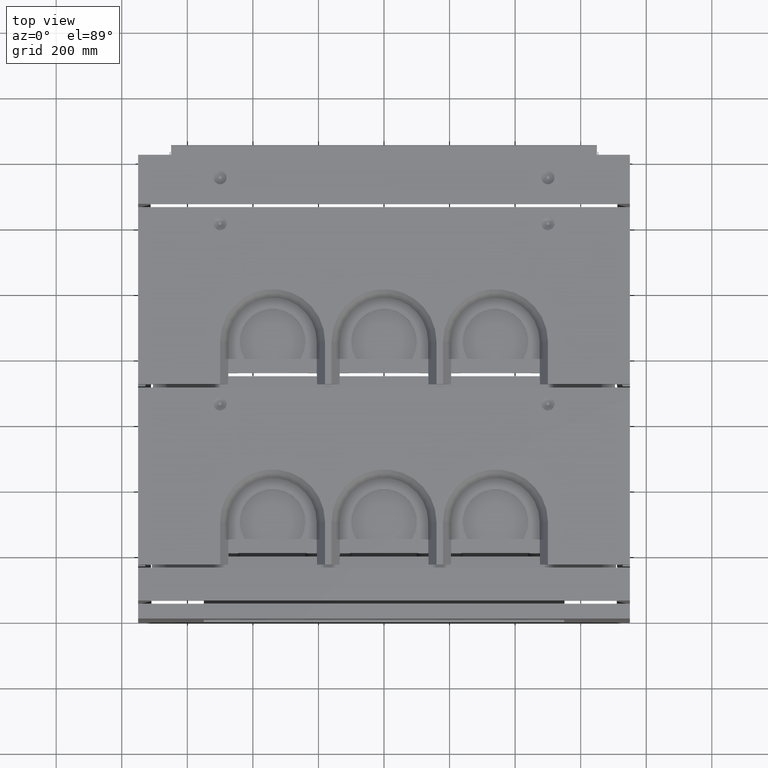
[diagram: clean part render]
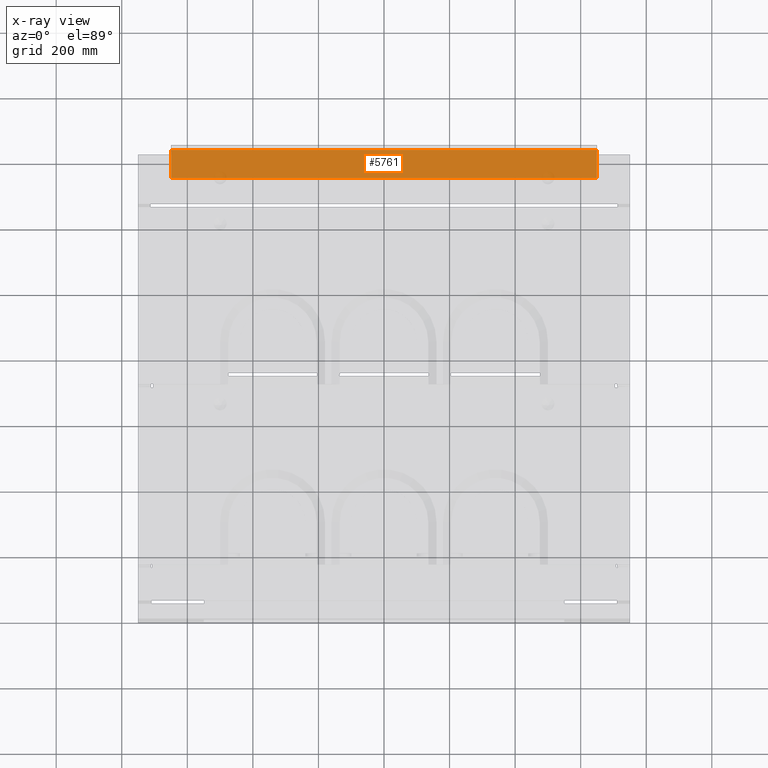
[diagram: x-ray — body ghosted, one internal face saturated and labeled with its STEP entity id]
A machine part, top view, then the same camera in x-ray: the body is ghosted and one INTERNAL B-rep face — a face not visible from any outside direction — is saturated and labeled: STEP entity #5761.
In plain terms, the highlighted planar face has unit normal (0, -0, 1).
Its self-contained STEP definition (entity closure, byte-faithful):
#1236 = ORIENTED_EDGE ( 'NONE', *, *, #27541, .F. ) ;
#1680 = EDGE_LOOP ( 'NONE', ( #15583, #1236, #21247, #11129 ) ) ;
#2909 = CARTESIAN_POINT ( 'NONE',  ( -649.4999999999997726, 1441.999999999998863, -326.9999999999993747 ) ) ;
#3044 = VERTEX_POINT ( 'NONE', #2909 ) ;
#3625 = EDGE_CURVE ( 'NONE', #20929, #4108, #31603, .T. ) ;
#4108 = VERTEX_POINT ( 'NONE', #8219 ) ;
#5761 = ADVANCED_FACE ( 'NONE', ( #29154 ), #37608, .F. ) ;
#6358 = CARTESIAN_POINT ( 'NONE',  ( -649.4999999999997726, 1355.999999999999091, -326.9999999999993747 ) ) ;
#6753 = VECTOR ( 'NONE', #9967, 1000.000000000000000 ) ;
#6964 = CARTESIAN_POINT ( 'NONE',  ( -649.4999999999997726, 1353.999999999999091, -326.9999999999993747 ) ) ;
#7856 = CARTESIAN_POINT ( 'NONE',  ( -649.4999999999997726, 1355.999999999999091, -326.9999999999993747 ) ) ;
#8219 = CARTESIAN_POINT ( 'NONE',  ( 649.5000000000002274, 1355.999999999999318, -326.9999999999994316 ) ) ;
#8431 = AXIS2_PLACEMENT_3D ( 'NONE', #37749, #28908, #22949 ) ;
#9967 = DIRECTION ( 'NONE',  ( 4.996003610813214293E-16, -1.000000000000000000, -3.491525250738777631E-16 ) ) ;
#11129 = ORIENTED_EDGE ( 'NONE', *, *, #33146, .T. ) ;
#11738 = VECTOR ( 'NONE', #30726, 1000.000000000000000 ) ;
#12264 = CARTESIAN_POINT ( 'NONE',  ( 649.5000000000002274, 1353.999999999999318, -326.9999999999994316 ) ) ;
#15583 = ORIENTED_EDGE ( 'NONE', *, *, #3625, .T. ) ;
#16472 = LINE ( 'NONE', #7856, #28003 ) ;
#20404 = CARTESIAN_POINT ( 'NONE',  ( 649.5000000000002274, 1441.999999999999545, -326.9999999999993747 ) ) ;
#20659 = LINE ( 'NONE', #6964, #6753 ) ;
#20929 = VERTEX_POINT ( 'NONE', #20404 ) ;
#21247 = ORIENTED_EDGE ( 'NONE', *, *, #27205, .F. ) ;
#22747 = DIRECTION ( 'NONE',  ( 1.000000000000000000, 4.996003610813214293E-16, -1.734723475976775047E-17 ) ) ;
#22949 = DIRECTION ( 'NONE',  ( -4.996003610813214293E-16, 1.000000000000000000, 3.491525250738777631E-16 ) ) ;
#27205 = EDGE_CURVE ( 'NONE', #3044, #29389, #20659, .T. ) ;
#27541 = EDGE_CURVE ( 'NONE', #29389, #4108, #16472, .T. ) ;
#28003 = VECTOR ( 'NONE', #34521, 1000.000000000000000 ) ;
#28908 = DIRECTION ( 'NONE',  ( 1.734723475976792611E-17, -3.491525250738777631E-16, 1.000000000000000000 ) ) ;
#29154 = FACE_OUTER_BOUND ( 'NONE', #1680, .T. ) ;
#29389 = VERTEX_POINT ( 'NONE', #6358 ) ;
#30726 = DIRECTION ( 'NONE',  ( 4.996003610813214293E-16, -1.000000000000000000, -3.491525250738777631E-16 ) ) ;
#31603 = LINE ( 'NONE', #12264, #11738 ) ;
#31702 = CARTESIAN_POINT ( 'NONE',  ( -649.4999999999997726, 1441.999999999998863, -326.9999999999993747 ) ) ;
#33146 = EDGE_CURVE ( 'NONE', #3044, #20929, #34921, .T. ) ;
#34521 = DIRECTION ( 'NONE',  ( 1.000000000000000000, 4.996003610813214293E-16, -1.734723475976775047E-17 ) ) ;
#34921 = LINE ( 'NONE', #31702, #38184 ) ;
#37608 = PLANE ( 'NONE',  #8431 ) ;
#37749 = CARTESIAN_POINT ( 'NONE',  ( -649.4999999999997726, 1353.999999999999091, -326.9999999999993747 ) ) ;
#38184 = VECTOR ( 'NONE', #22747, 1000.000000000000000 ) ;